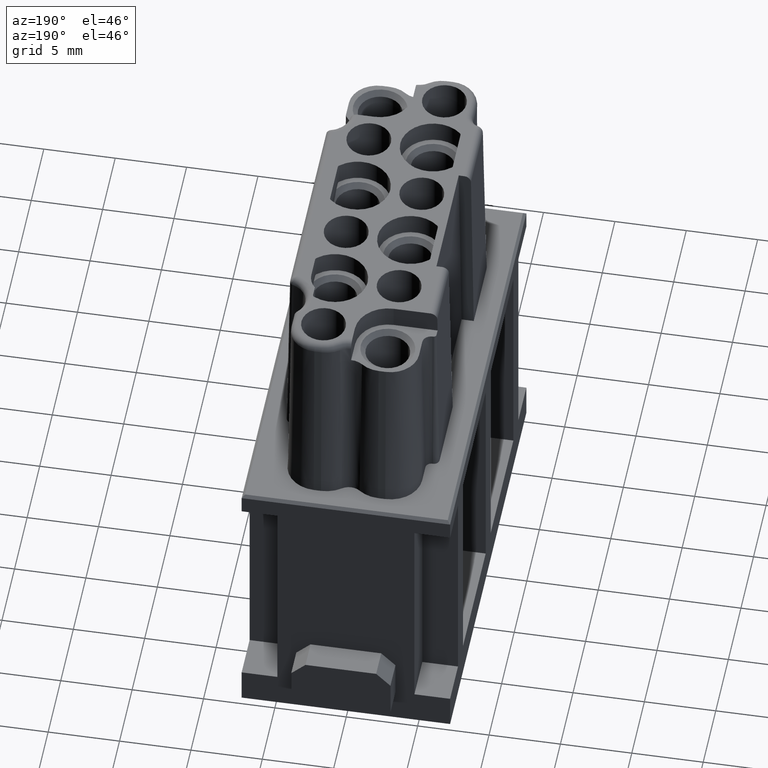
[diagram: clean part render]
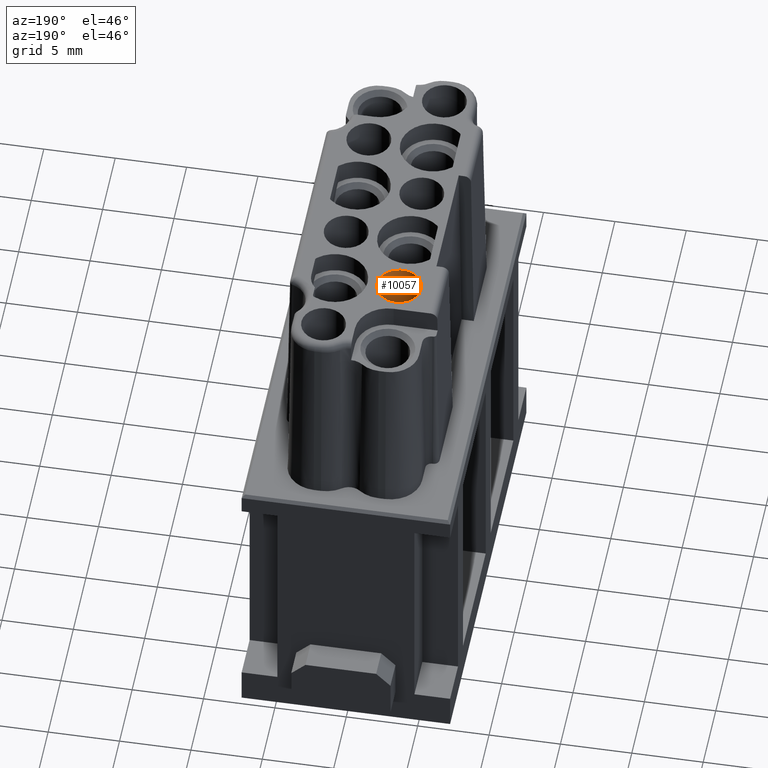
[diagram: same view with one face highlighted and labeled with its STEP entity id]
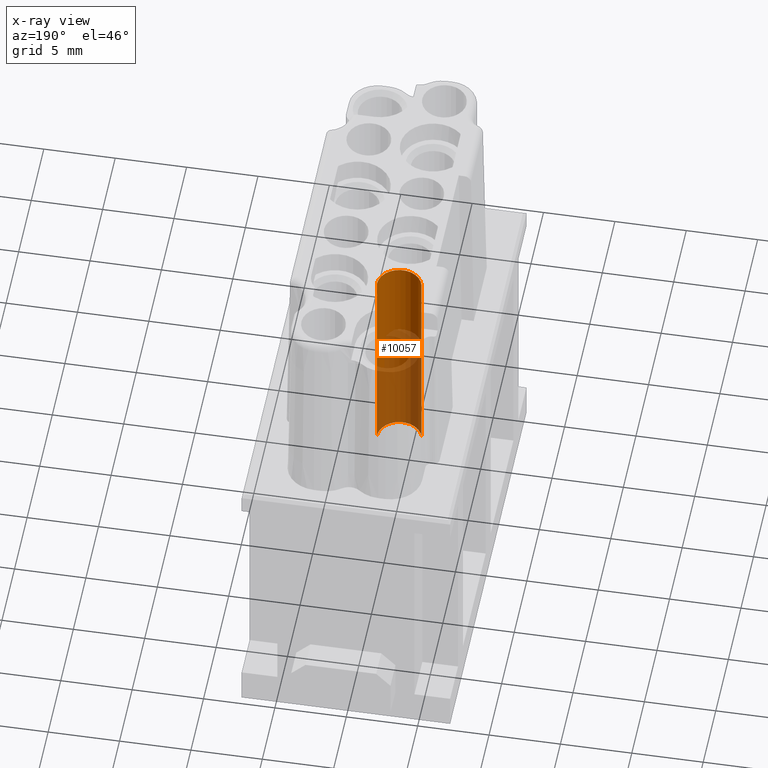
[diagram: x-ray of the same camera — body ghosted, the highlighted face saturated]
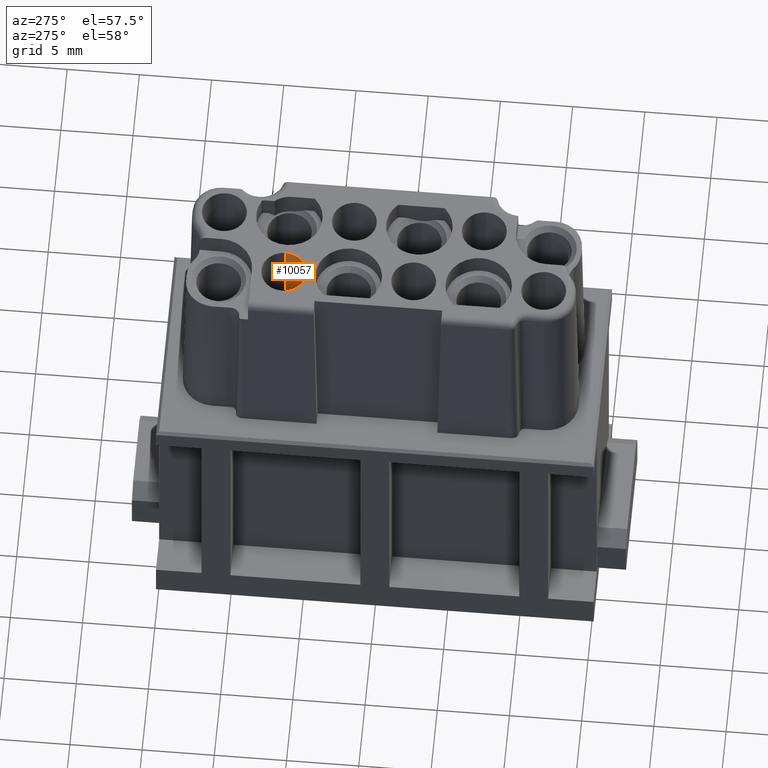
[diagram: same view with one face highlighted and labeled with its STEP entity id]
A machine part, auxiliary view. The second image highlights one B-rep face of the part: STEP entity #10057.
The next image is the same camera in x-ray: the body ghosted, the highlighted face saturated — about 57% of this face is hidden behind the body in this view.
A second angle (auxiliary view) of the same face is appended — the face is thin or edge-on in the first view.
In plain terms, the highlighted cylindrical surface (edge-blend (fillet) strip) has radius 1.55 mm, axis along (0, 0, 1).
Its self-contained STEP definition (entity closure, byte-faithful):
#147=CARTESIAN_POINT('',(-2.25E0,6.75E0,3.4E1));
#148=DIRECTION('',(0.E0,0.E0,-1.E0));
#149=DIRECTION('',(1.E0,0.E0,0.E0));
#150=AXIS2_PLACEMENT_3D('',#147,#148,#149);
#2485=CARTESIAN_POINT('',(-2.25E0,6.75E0,1.89E1));
#2486=DIRECTION('',(0.E0,0.E0,1.E0));
#2487=DIRECTION('',(-1.E0,0.E0,0.E0));
#2488=AXIS2_PLACEMENT_3D('',#2485,#2486,#2487);
#2500=DIRECTION('',(0.E0,0.E0,-1.E0));
#2501=VECTOR('',#2500,1.51E1);
#2502=CARTESIAN_POINT('',(-3.8E0,6.75E0,3.4E1));
#2503=LINE('',#2502,#2501);
#2504=DIRECTION('',(0.E0,0.E0,-1.E0));
#2505=VECTOR('',#2504,1.51E1);
#2506=CARTESIAN_POINT('',(-7.E-1,6.75E0,3.4E1));
#2507=LINE('',#2506,#2505);
#4010=CARTESIAN_POINT('',(-7.E-1,6.75E0,3.4E1));
#4011=CARTESIAN_POINT('',(-3.8E0,6.75E0,3.4E1));
#4012=VERTEX_POINT('',#4010);
#4013=VERTEX_POINT('',#4011);
#4642=CARTESIAN_POINT('',(-7.E-1,6.75E0,1.89E1));
#4643=CARTESIAN_POINT('',(-3.8E0,6.75E0,1.89E1));
#4644=VERTEX_POINT('',#4642);
#4645=VERTEX_POINT('',#4643);
#10046=CARTESIAN_POINT('',(-2.25E0,6.75E0,1.9E1));
#10047=DIRECTION('',(0.E0,0.E0,1.E0));
#10048=DIRECTION('',(1.E0,0.E0,0.E0));
#10049=AXIS2_PLACEMENT_3D('',#10046,#10047,#10048);
#10050=CYLINDRICAL_SURFACE('',#10049,1.55E0);
#10051=ORIENTED_EDGE('',*,*,#5150,.T.);
#10052=ORIENTED_EDGE('',*,*,#10041,.T.);
#10053=ORIENTED_EDGE('',*,*,#10023,.T.);
#10054=ORIENTED_EDGE('',*,*,#10038,.F.);
#10055=EDGE_LOOP('',(#10051,#10052,#10053,#10054));
#10056=FACE_OUTER_BOUND('',#10055,.F.);
#10057=ADVANCED_FACE('',(#10056),#10050,.F.);
#151=CIRCLE('',#150,1.55E0);
#2489=CIRCLE('',#2488,1.55E0);
#5150=EDGE_CURVE('',#4012,#4013,#151,.T.);
#10023=EDGE_CURVE('',#4645,#4644,#2489,.T.);
#10038=EDGE_CURVE('',#4012,#4644,#2507,.T.);
#10041=EDGE_CURVE('',#4013,#4645,#2503,.T.);